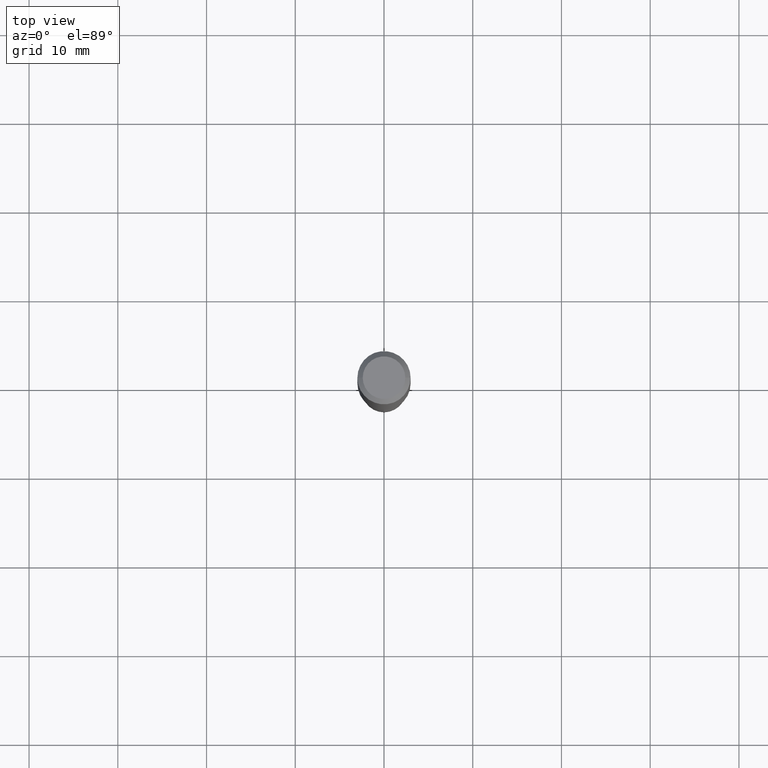
[diagram: clean part render]
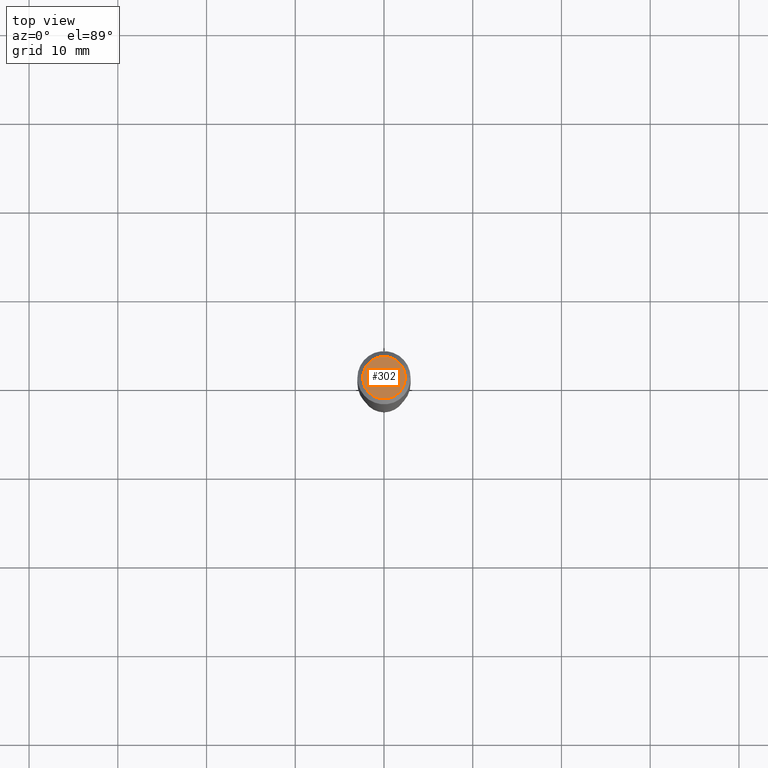
[diagram: same view with one face highlighted and labeled with its STEP entity id]
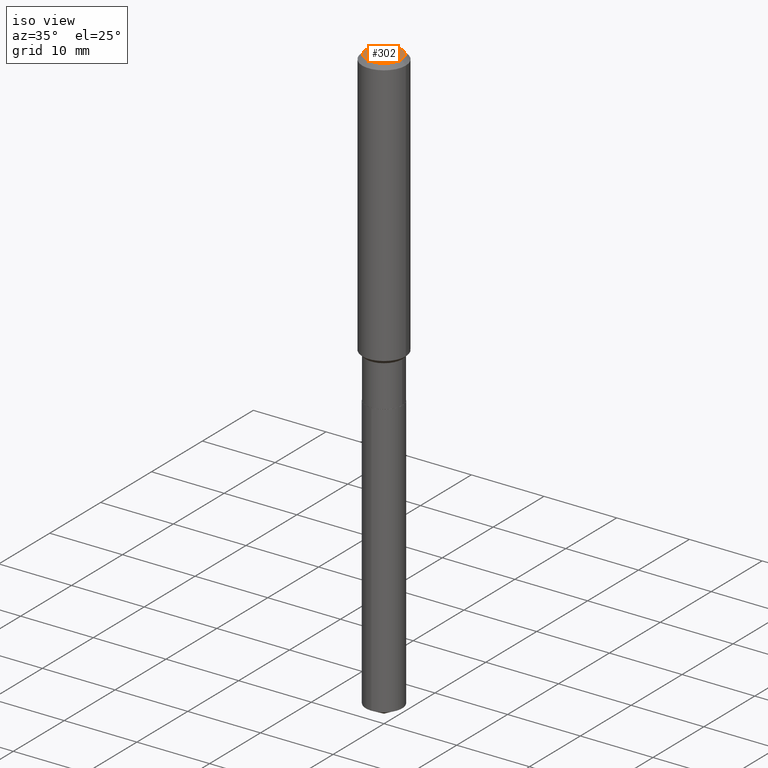
[diagram: same view with one face highlighted and labeled with its STEP entity id]
A machine part, top view. The second image highlights one B-rep face of the part: STEP entity #302.
A second angle (iso view) of the same face is appended — the face is thin or edge-on in the first view.
In plain terms, the highlighted planar face has unit normal (0, -0, -1).
Its self-contained STEP definition (entity closure, byte-faithful):
#13 = AXIS2_PLACEMENT_3D ( 'NONE', #119, #342, #490 ) ;
#21 = VERTEX_POINT ( 'NONE', #108 ) ;
#47 = AXIS2_PLACEMENT_3D ( 'NONE', #59, #167, #208 ) ;
#59 = CARTESIAN_POINT ( 'NONE',  ( 2.358133508849003952E-46, -3.366789680499277518E-32, -9.642868896486260050E-18 ) ) ;
#98 = VERTEX_POINT ( 'NONE', #304 ) ;
#108 = CARTESIAN_POINT ( 'NONE',  ( 0.09447999999999998066, -7.704367267948738690E-16, -1.928573779296752193E-17 ) ) ;
#110 = AXIS2_PLACEMENT_3D ( 'NONE', #399, #202, #360 ) ;
#111 = EDGE_CURVE ( 'NONE', #21, #98, #144, .T. ) ;
#119 = CARTESIAN_POINT ( 'NONE',  ( 4.716267017698007905E-46, -6.733579360998555036E-32, -1.928573779297252010E-17 ) ) ;
#144 = CIRCLE ( 'NONE', #13, 0.09447999999999998066 ) ;
#167 = DIRECTION ( 'NONE',  ( 2.438088387897960049E-29, -3.491481338843145188E-15, -1.000000000000000000 ) ) ;
#202 = DIRECTION ( 'NONE',  ( -2.445468806185136597E-29, 3.491481338843145583E-15, 1.000000000000000000 ) ) ;
#208 = DIRECTION ( 'NONE',  ( -1.000000000000000000, 6.982962677686265922E-15, -4.876176775795935793E-29 ) ) ;
#209 = ORIENTED_EDGE ( 'NONE', *, *, #111, .T. ) ;
#222 = ORIENTED_EDGE ( 'NONE', *, *, #393, .T. ) ;
#239 = PLANE ( 'NONE',  #47 ) ;
#243 = EDGE_LOOP ( 'NONE', ( #222, #209 ) ) ;
#274 = FACE_OUTER_BOUND ( 'NONE', #243, .T. ) ;
#302 = ADVANCED_FACE ( 'NONE', ( #274 ), #239, .F. ) ;
#304 = CARTESIAN_POINT ( 'NONE',  ( -0.09447999999999998066, 7.009847083995354710E-16, -1.928573779297727792E-17 ) ) ;
#319 = CIRCLE ( 'NONE', #110, 0.09447999999999998066 ) ;
#342 = DIRECTION ( 'NONE',  ( -2.445468806185136597E-29, 3.491481338843145583E-15, 1.000000000000000000 ) ) ;
#360 = DIRECTION ( 'NONE',  ( 1.000000000000000000, -6.982962677686267499E-15, 4.875432709231658792E-29 ) ) ;
#393 = EDGE_CURVE ( 'NONE', #98, #21, #319, .T. ) ;
#399 = CARTESIAN_POINT ( 'NONE',  ( 4.716267017698007905E-46, -6.733579360998555036E-32, -1.928573779297252010E-17 ) ) ;
#490 = DIRECTION ( 'NONE',  ( 1.000000000000000000, -6.982962677686267499E-15, 4.875432709231658792E-29 ) ) ;